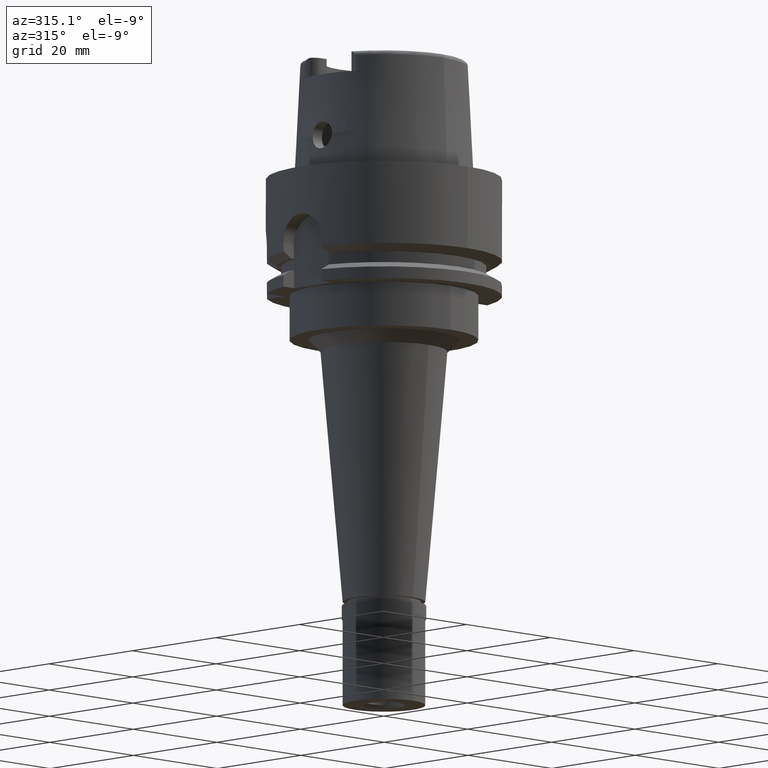
[diagram: clean part render]
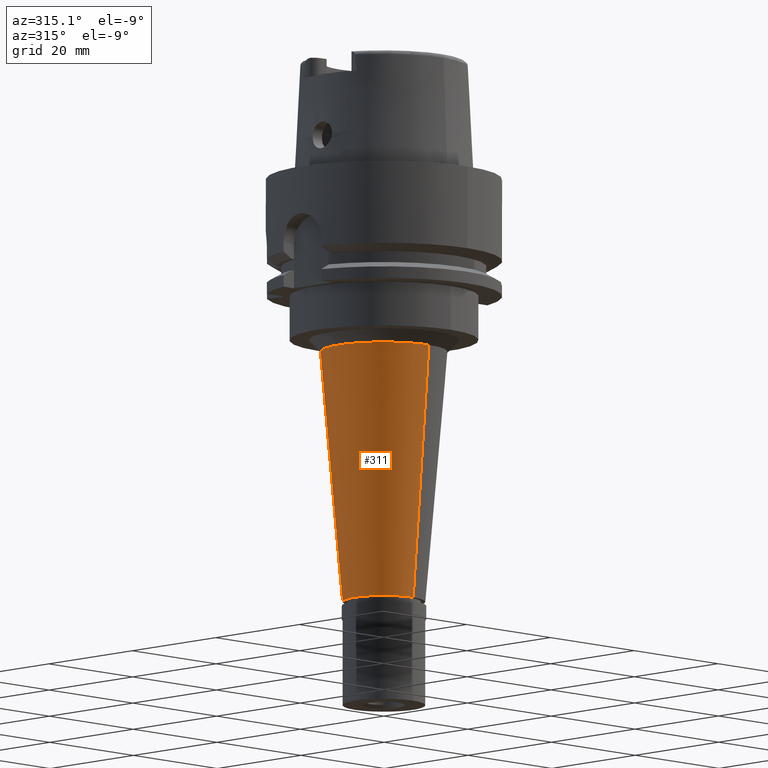
[diagram: same view with one face highlighted and labeled with its STEP entity id]
A machine part, auxiliary view. The second image highlights one B-rep face of the part: STEP entity #311.
In plain terms, the highlighted conical surface has half-angle 5 deg.
Its self-contained STEP definition (entity closure, byte-faithful):
#29 = VERTEX_POINT ( 'NONE', #4790 ) ;
#74 = LINE ( 'NONE', #1773, #4869 ) ;
#183 = DIRECTION ( 'NONE',  ( 0.0000000000000000000, -1.000000000000000000, 0.0000000000000000000 ) ) ;
#184 = DIRECTION ( 'NONE',  ( 0.0000000000000000000, -0.08715574274766389740, -0.9961946980917451011 ) ) ;
#311 = ADVANCED_FACE ( 'NONE', ( #4061 ), #945, .T. ) ;
#387 = DIRECTION ( 'NONE',  ( 0.0000000000000000000, 1.000000000000000000, 0.0000000000000000000 ) ) ;
#558 = CARTESIAN_POINT ( 'NONE',  ( 0.0000000000000000000, 7.000000000000000000, -72.29999999999999716 ) ) ;
#944 = CIRCLE ( 'NONE', #3678, 10.74451479890999828 ) ;
#945 = CONICAL_SURFACE ( 'NONE', #2075, 8.872257399455000026, 0.08726646259969973729 ) ;
#1404 = CARTESIAN_POINT ( 'NONE',  ( 0.0000000000000000000, -7.000000000000000000, -72.29999999999999716 ) ) ;
#1424 = EDGE_CURVE ( 'NONE', #29, #1951, #944, .T. ) ;
#1566 = DIRECTION ( 'NONE',  ( 0.0000000000000000000, 0.0000000000000000000, 1.000000000000000000 ) ) ;
#1773 = CARTESIAN_POINT ( 'NONE',  ( 0.0000000000000000000, -10.74451479890999828, -29.50000000000000000 ) ) ;
#1854 = DIRECTION ( 'NONE',  ( 0.0000000000000000000, 0.0000000000000000000, -1.000000000000000000 ) ) ;
#1885 = EDGE_LOOP ( 'NONE', ( #2142, #2684, #4948, #2502 ) ) ;
#1951 = VERTEX_POINT ( 'NONE', #4592 ) ;
#1968 = VECTOR ( 'NONE', #184, 1000.000000000000114 ) ;
#2075 = AXIS2_PLACEMENT_3D ( 'NONE', #3709, #2880, #387 ) ;
#2142 = ORIENTED_EDGE ( 'NONE', *, *, #2702, .T. ) ;
#2405 = CARTESIAN_POINT ( 'NONE',  ( 0.0000000000000000000, 0.0000000000000000000, -72.29999999999999716 ) ) ;
#2461 = CIRCLE ( 'NONE', #3996, 7.000000000000000000 ) ;
#2502 = ORIENTED_EDGE ( 'NONE', *, *, #4920, .T. ) ;
#2523 = DIRECTION ( 'NONE',  ( 0.0000000000000000000, 0.08715574274766389740, -0.9961946980917451011 ) ) ;
#2633 = VERTEX_POINT ( 'NONE', #1404 ) ;
#2684 = ORIENTED_EDGE ( 'NONE', *, *, #3384, .F. ) ;
#2702 = EDGE_CURVE ( 'NONE', #3356, #2633, #2461, .T. ) ;
#2880 = DIRECTION ( 'NONE',  ( 0.0000000000000000000, 0.0000000000000000000, 1.000000000000000000 ) ) ;
#3356 = VERTEX_POINT ( 'NONE', #558 ) ;
#3384 = EDGE_CURVE ( 'NONE', #29, #2633, #74, .T. ) ;
#3678 = AXIS2_PLACEMENT_3D ( 'NONE', #4662, #1854, #183 ) ;
#3709 = CARTESIAN_POINT ( 'NONE',  ( 0.0000000000000000000, 0.0000000000000000000, -50.89999999999999858 ) ) ;
#3797 = LINE ( 'NONE', #4239, #1968 ) ;
#3996 = AXIS2_PLACEMENT_3D ( 'NONE', #2405, #1566, #4464 ) ;
#4061 = FACE_OUTER_BOUND ( 'NONE', #1885, .T. ) ;
#4239 = CARTESIAN_POINT ( 'NONE',  ( 0.0000000000000000000, 10.74451479890999828, -29.50000000000000000 ) ) ;
#4464 = DIRECTION ( 'NONE',  ( 0.0000000000000000000, 1.000000000000000000, 0.0000000000000000000 ) ) ;
#4592 = CARTESIAN_POINT ( 'NONE',  ( 0.0000000000000000000, 10.74451479890999828, -29.50000000000000000 ) ) ;
#4662 = CARTESIAN_POINT ( 'NONE',  ( 0.0000000000000000000, 0.0000000000000000000, -29.50000000000000000 ) ) ;
#4790 = CARTESIAN_POINT ( 'NONE',  ( 0.0000000000000000000, -10.74451479890999828, -29.50000000000000000 ) ) ;
#4869 = VECTOR ( 'NONE', #2523, 1000.000000000000114 ) ;
#4920 = EDGE_CURVE ( 'NONE', #1951, #3356, #3797, .T. ) ;
#4948 = ORIENTED_EDGE ( 'NONE', *, *, #1424, .T. ) ;